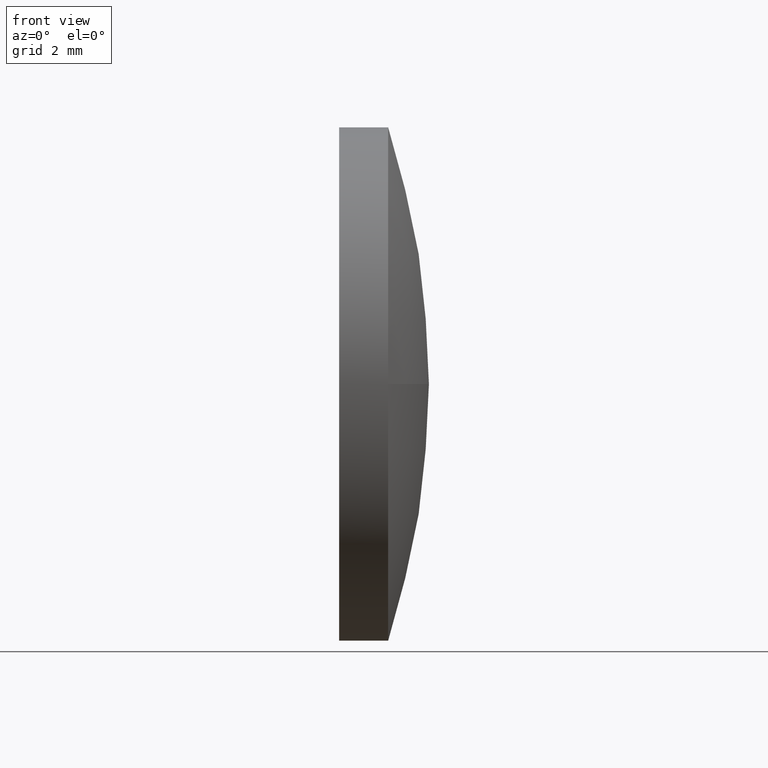
[diagram: clean part render]
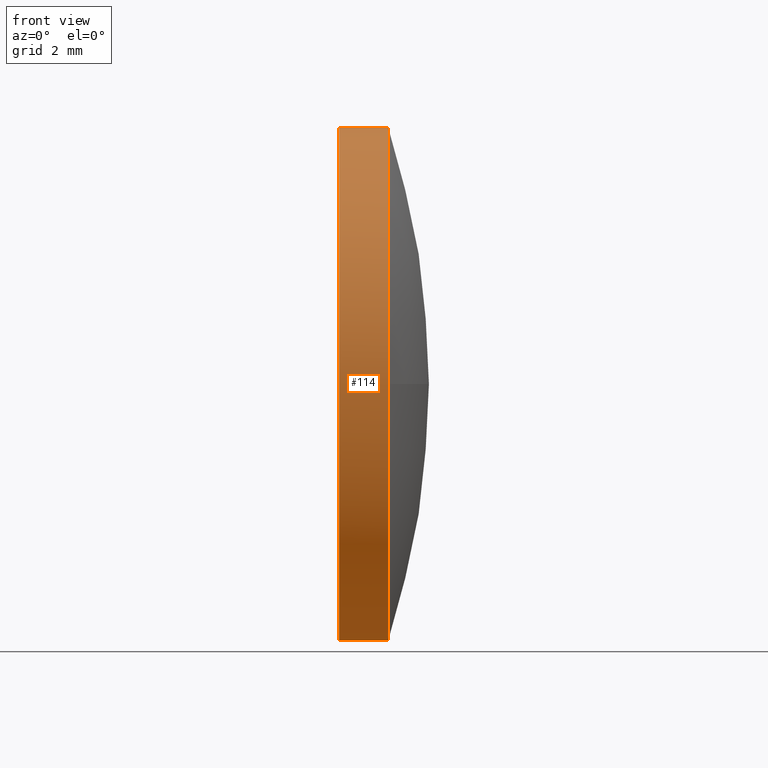
[diagram: same view with one face highlighted and labeled with its STEP entity id]
A machine part, front view. The second image highlights one B-rep face of the part: STEP entity #114.
In plain terms, the highlighted cylindrical surface (partial cylindrical patch) has radius 8 mm, axis along (-1, -0, -0).
Its self-contained STEP definition (entity closure, byte-faithful):
#7 = VERTEX_POINT ( 'NONE', #14 ) ;
#10 = DIRECTION ( 'NONE',  ( -1.000000000000000000, -0.0000000000000000000, -0.0000000000000000000 ) ) ;
#14 = CARTESIAN_POINT ( 'NONE',  ( 684.5935508571371900, 205.9901794315100300, -7.999999999999979600 ) ) ;
#15 = EDGE_CURVE ( 'NONE', #52, #131, #73, .T. ) ;
#17 = EDGE_CURVE ( 'NONE', #121, #131, #48, .T. ) ;
#18 = LINE ( 'NONE', #156, #100 ) ;
#24 = CARTESIAN_POINT ( 'NONE',  ( 684.5935508571371900, 197.9901794315100300, -9.797174393178804000E-016 ) ) ;
#37 = VECTOR ( 'NONE', #47, 1000.000000000000000 ) ;
#40 = CARTESIAN_POINT ( 'NONE',  ( 679.3382822367749400, 205.9901794315100300, 0.0000000000000000000 ) ) ;
#47 = DIRECTION ( 'NONE',  ( -1.000000000000000000, -0.0000000000000000000, -0.0000000000000000000 ) ) ;
#48 = LINE ( 'NONE', #175, #37 ) ;
#52 = VERTEX_POINT ( 'NONE', #141 ) ;
#53 = DIRECTION ( 'NONE',  ( -1.000000000000000000, -0.0000000000000000000, -0.0000000000000000000 ) ) ;
#54 = AXIS2_PLACEMENT_3D ( 'NONE', #126, #172, #77 ) ;
#61 = ORIENTED_EDGE ( 'NONE', *, *, #17, .T. ) ;
#66 = DIRECTION ( 'NONE',  ( 0.0000000000000000000, 0.0000000000000000000, 1.000000000000000000 ) ) ;
#70 = ORIENTED_EDGE ( 'NONE', *, *, #15, .F. ) ;
#71 = CARTESIAN_POINT ( 'NONE',  ( 684.5935508571371900, 205.9901794315100300, 0.0000000000000000000 ) ) ;
#73 = CIRCLE ( 'NONE', #54, 7.999999999999979600 ) ;
#74 = CARTESIAN_POINT ( 'NONE',  ( 684.5935508571371900, 205.9901794315100300, 7.999999999999979600 ) ) ;
#77 = DIRECTION ( 'NONE',  ( 0.0000000000000000000, 0.0000000000000000000, 1.000000000000000000 ) ) ;
#87 = DIRECTION ( 'NONE',  ( 0.0000000000000000000, 0.0000000000000000000, 1.000000000000000000 ) ) ;
#91 = ORIENTED_EDGE ( 'NONE', *, *, #169, .T. ) ;
#95 = DIRECTION ( 'NONE',  ( -1.000000000000000000, -0.0000000000000000000, -0.0000000000000000000 ) ) ;
#100 = VECTOR ( 'NONE', #170, 1000.000000000000000 ) ;
#103 = AXIS2_PLACEMENT_3D ( 'NONE', #40, #53, #66 ) ;
#105 = DIRECTION ( 'NONE',  ( 0.0000000000000000000, 0.0000000000000000000, 1.000000000000000000 ) ) ;
#106 = EDGE_CURVE ( 'NONE', #7, #155, #181, .T. ) ;
#109 = CIRCLE ( 'NONE', #183, 7.999999999999979600 ) ;
#114 = ADVANCED_FACE ( 'NONE', ( #128 ), #174, .T. ) ;
#120 = EDGE_CURVE ( 'NONE', #7, #52, #18, .T. ) ;
#121 = VERTEX_POINT ( 'NONE', #74 ) ;
#126 = CARTESIAN_POINT ( 'NONE',  ( 683.0635508571372200, 205.9901794315100300, 0.0000000000000000000 ) ) ;
#128 = FACE_OUTER_BOUND ( 'NONE', #151, .T. ) ;
#129 = CARTESIAN_POINT ( 'NONE',  ( 684.5935508571371900, 205.9901794315100300, 0.0000000000000000000 ) ) ;
#131 = VERTEX_POINT ( 'NONE', #166 ) ;
#141 = CARTESIAN_POINT ( 'NONE',  ( 683.0635508571372200, 205.9901794315100300, -7.999999999999979600 ) ) ;
#151 = EDGE_LOOP ( 'NONE', ( #182, #177, #91, #61, #70 ) ) ;
#155 = VERTEX_POINT ( 'NONE', #24 ) ;
#156 = CARTESIAN_POINT ( 'NONE',  ( 679.3382822367749400, 205.9901794315100300, -7.999999999999979600 ) ) ;
#159 = AXIS2_PLACEMENT_3D ( 'NONE', #129, #95, #105 ) ;
#166 = CARTESIAN_POINT ( 'NONE',  ( 683.0635508571372200, 205.9901794315100300, 7.999999999999979600 ) ) ;
#169 = EDGE_CURVE ( 'NONE', #155, #121, #109, .T. ) ;
#170 = DIRECTION ( 'NONE',  ( -1.000000000000000000, -0.0000000000000000000, -0.0000000000000000000 ) ) ;
#172 = DIRECTION ( 'NONE',  ( -1.000000000000000000, -0.0000000000000000000, -0.0000000000000000000 ) ) ;
#174 = CYLINDRICAL_SURFACE ( 'NONE', #103, 7.999999999999979600 ) ;
#175 = CARTESIAN_POINT ( 'NONE',  ( 679.3382822367749400, 205.9901794315100300, 7.999999999999979600 ) ) ;
#177 = ORIENTED_EDGE ( 'NONE', *, *, #106, .T. ) ;
#181 = CIRCLE ( 'NONE', #159, 7.999999999999979600 ) ;
#182 = ORIENTED_EDGE ( 'NONE', *, *, #120, .F. ) ;
#183 = AXIS2_PLACEMENT_3D ( 'NONE', #71, #10, #87 ) ;